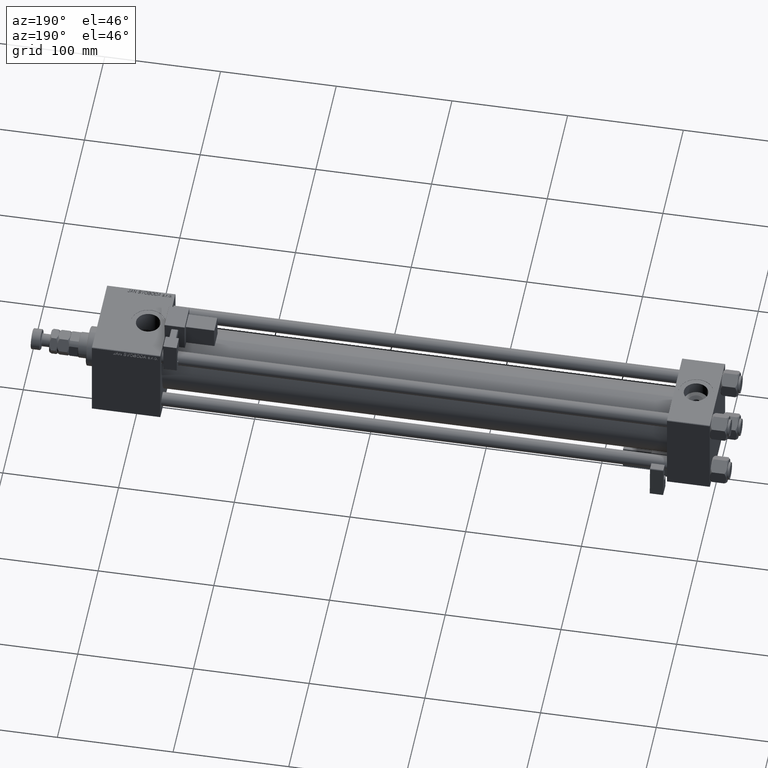
[diagram: clean part render]
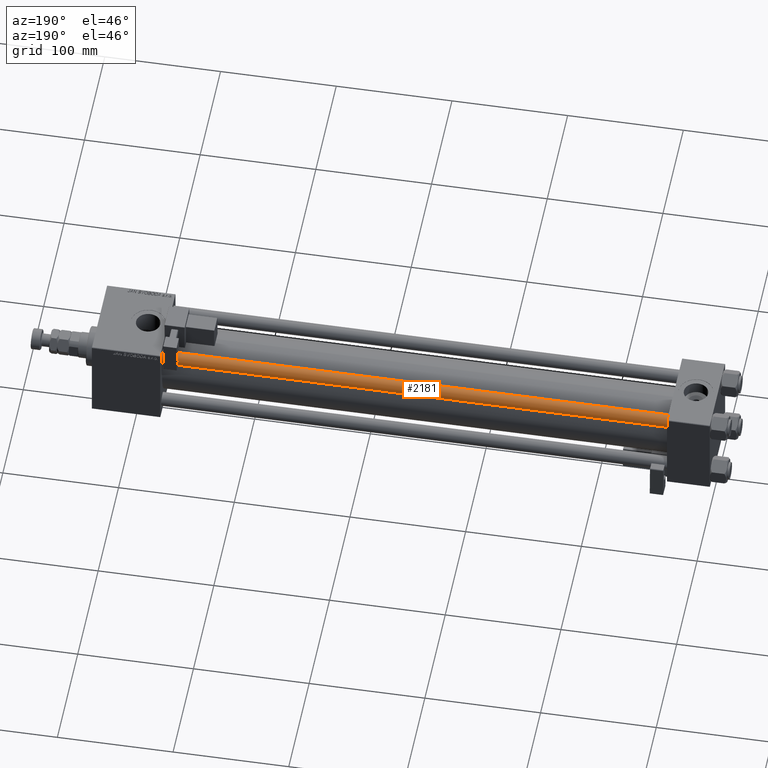
[diagram: same view with one face highlighted and labeled with its STEP entity id]
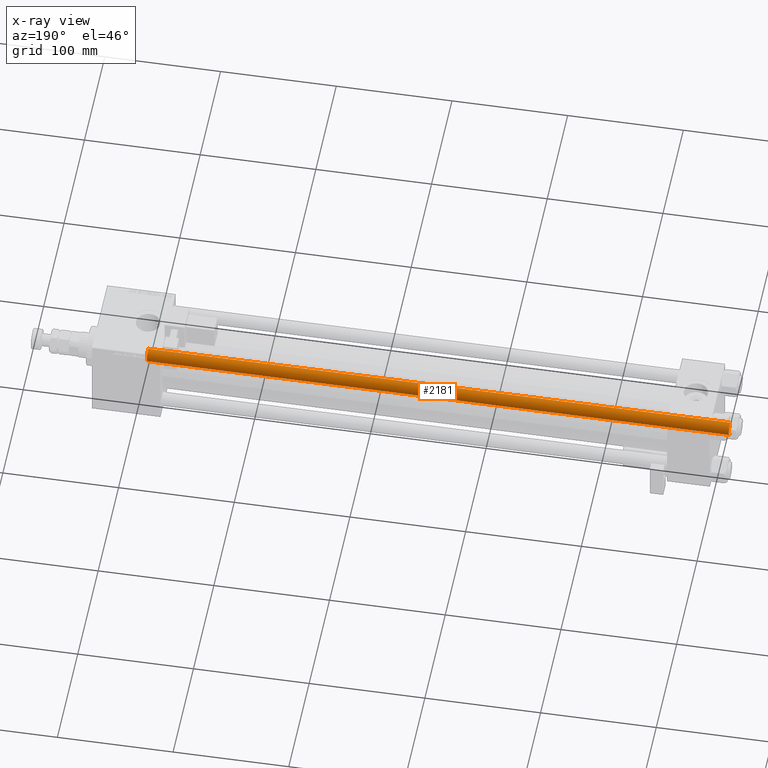
[diagram: x-ray of the same camera — body ghosted, the highlighted face saturated]
A machine part, auxiliary view. The second image highlights one B-rep face of the part: STEP entity #2181.
The next image is the same camera in x-ray: the body ghosted, the highlighted face saturated — about 0% of this face is hidden behind the body in this view.
In plain terms, the highlighted cylindrical surface (edge-blend (fillet) strip) has radius 6 mm, axis along (-1, 0, 0).
Its self-contained STEP definition (entity closure, byte-faithful):
#2181 = ADVANCED_FACE ( 'NONE', ( #41229 ), #3654, .T. ) ;
#3654 = CYLINDRICAL_SURFACE ( 'NONE', #7690, 6.000000000000000888 ) ;
#5850 = DIRECTION ( 'NONE',  ( -0.000000000000000000, -0.000000000000000000, -1.000000000000000000 ) ) ;
#6007 = CARTESIAN_POINT ( 'NONE',  ( 6.000000000000000888, 7.347880794884120722E-16, 503.5000000000000568 ) ) ;
#6667 = DIRECTION ( 'NONE',  ( -1.000000000000000000, 0.000000000000000000, 0.000000000000000000 ) ) ;
#7690 = AXIS2_PLACEMENT_3D ( 'NONE', #27510, #14885, #6667 ) ;
#9789 = VERTEX_POINT ( 'NONE', #30795 ) ;
#9950 = LINE ( 'NONE', #13534, #47730 ) ;
#12063 = ORIENTED_EDGE ( 'NONE', *, *, #41761, .F. ) ;
#12721 = ORIENTED_EDGE ( 'NONE', *, *, #24422, .T. ) ;
#12966 = DIRECTION ( 'NONE',  ( -0.000000000000000000, -0.000000000000000000, -1.000000000000000000 ) ) ;
#13534 = CARTESIAN_POINT ( 'NONE',  ( 6.000000000000000888, 7.347880794884120722E-16, 504.0000000000000000 ) ) ;
#14885 = DIRECTION ( 'NONE',  ( -0.000000000000000000, -0.000000000000000000, -1.000000000000000000 ) ) ;
#15300 = CIRCLE ( 'NONE', #33700, 6.000000000000000888 ) ;
#15345 = DIRECTION ( 'NONE',  ( 1.000000000000000000, 0.000000000000000000, 0.000000000000000000 ) ) ;
#15611 = CARTESIAN_POINT ( 'NONE',  ( 0.000000000000000000, 0.000000000000000000, 503.5000000000000568 ) ) ;
#16016 = CIRCLE ( 'NONE', #47577, 6.000000000000000888 ) ;
#16876 = CARTESIAN_POINT ( 'NONE',  ( -6.000000000000000888, 0.000000000000000000, 503.5000000000000568 ) ) ;
#17744 = EDGE_CURVE ( 'NONE', #45416, #34881, #16016, .T. ) ;
#23844 = VECTOR ( 'NONE', #12966, 1000.000000000000000 ) ;
#24422 = EDGE_CURVE ( 'NONE', #34881, #36488, #9950, .T. ) ;
#26170 = DIRECTION ( 'NONE',  ( -0.000000000000000000, -0.000000000000000000, 1.000000000000000000 ) ) ;
#27510 = CARTESIAN_POINT ( 'NONE',  ( 0.000000000000000000, 0.000000000000000000, 504.0000000000000000 ) ) ;
#28630 = CARTESIAN_POINT ( 'NONE',  ( 6.000000000000000888, 7.347880794884120722E-16, 0.5000000000001669775 ) ) ;
#30795 = CARTESIAN_POINT ( 'NONE',  ( -6.000000000000000888, 0.000000000000000000, 0.5000000000001669775 ) ) ;
#33700 = AXIS2_PLACEMENT_3D ( 'NONE', #47572, #26170, #47027 ) ;
#34881 = VERTEX_POINT ( 'NONE', #6007 ) ;
#35715 = ORIENTED_EDGE ( 'NONE', *, *, #17744, .T. ) ;
#36488 = VERTEX_POINT ( 'NONE', #28630 ) ;
#38774 = LINE ( 'NONE', #46171, #23844 ) ;
#41229 = FACE_OUTER_BOUND ( 'NONE', #50390, .T. ) ;
#41761 = EDGE_CURVE ( 'NONE', #45416, #9789, #38774, .T. ) ;
#45416 = VERTEX_POINT ( 'NONE', #16876 ) ;
#46171 = CARTESIAN_POINT ( 'NONE',  ( -6.000000000000000888, 0.000000000000000000, 504.0000000000000000 ) ) ;
#47027 = DIRECTION ( 'NONE',  ( 1.000000000000000000, 0.000000000000000000, 0.000000000000000000 ) ) ;
#47038 = ORIENTED_EDGE ( 'NONE', *, *, #48252, .T. ) ;
#47572 = CARTESIAN_POINT ( 'NONE',  ( 0.000000000000000000, 0.000000000000000000, 0.5000000000001669775 ) ) ;
#47577 = AXIS2_PLACEMENT_3D ( 'NONE', #15611, #53719, #15345 ) ;
#47730 = VECTOR ( 'NONE', #5850, 1000.000000000000000 ) ;
#48252 = EDGE_CURVE ( 'NONE', #36488, #9789, #15300, .T. ) ;
#50390 = EDGE_LOOP ( 'NONE', ( #35715, #12721, #47038, #12063 ) ) ;
#53719 = DIRECTION ( 'NONE',  ( 0.000000000000000000, 0.000000000000000000, -1.000000000000000000 ) ) ;